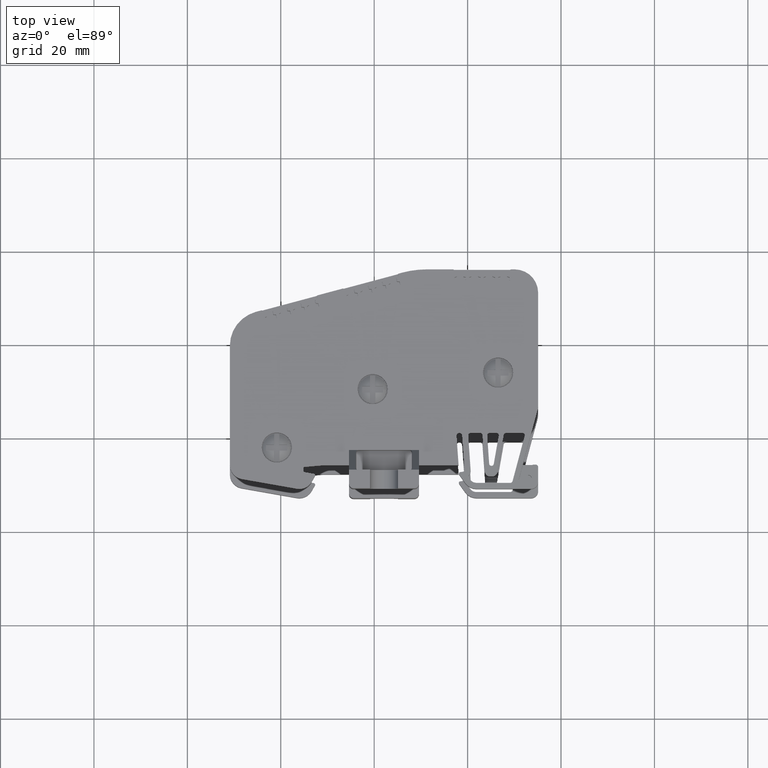
[diagram: clean part render]
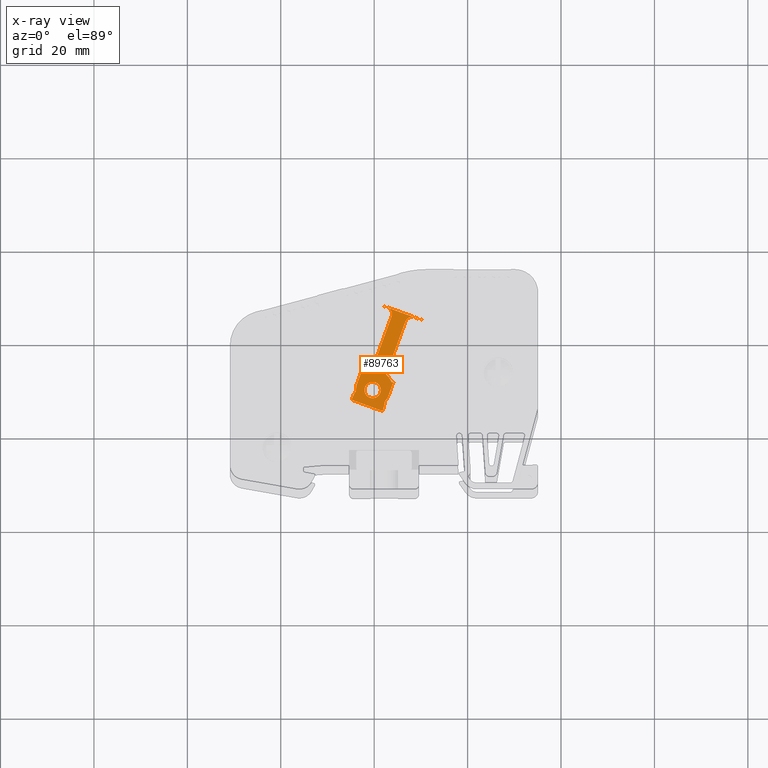
[diagram: x-ray — body ghosted, one internal face saturated and labeled with its STEP entity id]
A machine part, top view, then the same camera in x-ray: the body is ghosted and one INTERNAL B-rep face — a face not visible from any outside direction — is saturated and labeled: STEP entity #89763.
In plain terms, the highlighted planar face has unit normal (-0, 0, -1).
Its self-contained STEP definition (entity closure, byte-faithful):
#4027 = EDGE_CURVE ( 'NONE', #75097, #75054, #18445, .T. ) ;
#4038 = EDGE_CURVE ( 'NONE', #74982, #75070, #18465, .T. ) ;
#5239 = EDGE_CURVE ( 'NONE', #79960, #79998, #25848, .T. ) ;
#5271 = EDGE_CURVE ( 'NONE', #79958, #79894, #25917, .T. ) ;
#5741 = EDGE_CURVE ( 'NONE', #75054, #79958, #26984, .T. ) ;
#5769 = EDGE_CURVE ( 'NONE', #79998, #74982, #27036, .T. ) ;
#6223 = EDGE_CURVE ( 'NONE', #78890, #78944, #22495, .T. ) ;
#6252 = EDGE_CURVE ( 'NONE', #78839, #78918, #22445, .T. ) ;
#6290 = EDGE_CURVE ( 'NONE', #78978, #78950, #22574, .T. ) ;
#6924 = EDGE_LOOP ( 'NONE', ( #10603, #10545 ) ) ;
#6990 = EDGE_LOOP ( 'NONE', ( #10642, #10664, #10630, #10609, #10640, #10607, #10539, #10622, #10643, #10617, #10608, #10618, #10633, #10620, #10565, #10614, #10656, #10615, #10624, #10599, #10644, #10645, #10623, #10523, #10660, #10659, #10555, #10663 ) ) ;
#10523 = ORIENTED_EDGE ( 'NONE', *, *, #65115, .T. ) ;
#10539 = ORIENTED_EDGE ( 'NONE', *, *, #6290, .T. ) ;
#10545 = ORIENTED_EDGE ( 'NONE', *, *, #6223, .T. ) ;
#10555 = ORIENTED_EDGE ( 'NONE', *, *, #4038, .T. ) ;
#10565 = ORIENTED_EDGE ( 'NONE', *, *, #61350, .F. ) ;
#10599 = ORIENTED_EDGE ( 'NONE', *, *, #65246, .T. ) ;
#10603 = ORIENTED_EDGE ( 'NONE', *, *, #65008, .T. ) ;
#10607 = ORIENTED_EDGE ( 'NONE', *, *, #65232, .T. ) ;
#10608 = ORIENTED_EDGE ( 'NONE', *, *, #65175, .T. ) ;
#10609 = ORIENTED_EDGE ( 'NONE', *, *, #5741, .T. ) ;
#10614 = ORIENTED_EDGE ( 'NONE', *, *, #61383, .T. ) ;
#10615 = ORIENTED_EDGE ( 'NONE', *, *, #64891, .T. ) ;
#10617 = ORIENTED_EDGE ( 'NONE', *, *, #65207, .T. ) ;
#10618 = ORIENTED_EDGE ( 'NONE', *, *, #65213, .T. ) ;
#10620 = ORIENTED_EDGE ( 'NONE', *, *, #66332, .T. ) ;
#10622 = ORIENTED_EDGE ( 'NONE', *, *, #63197, .T. ) ;
#10623 = ORIENTED_EDGE ( 'NONE', *, *, #63237, .T. ) ;
#10624 = ORIENTED_EDGE ( 'NONE', *, *, #65123, .T. ) ;
#10630 = ORIENTED_EDGE ( 'NONE', *, *, #4027, .T. ) ;
#10633 = ORIENTED_EDGE ( 'NONE', *, *, #6252, .T. ) ;
#10640 = ORIENTED_EDGE ( 'NONE', *, *, #5271, .T. ) ;
#10642 = ORIENTED_EDGE ( 'NONE', *, *, #64802, .T. ) ;
#10643 = ORIENTED_EDGE ( 'NONE', *, *, #63393, .F. ) ;
#10644 = ORIENTED_EDGE ( 'NONE', *, *, #65059, .T. ) ;
#10645 = ORIENTED_EDGE ( 'NONE', *, *, #62769, .F. ) ;
#10656 = ORIENTED_EDGE ( 'NONE', *, *, #61346, .F. ) ;
#10659 = ORIENTED_EDGE ( 'NONE', *, *, #5769, .T. ) ;
#10660 = ORIENTED_EDGE ( 'NONE', *, *, #5239, .T. ) ;
#10663 = ORIENTED_EDGE ( 'NONE', *, *, #61763, .T. ) ;
#10664 = ORIENTED_EDGE ( 'NONE', *, *, #12806, .T. ) ;
#12806 = EDGE_CURVE ( 'NONE', #32838, #75097, #44213, .T. ) ;
#18435 = CARTESIAN_POINT ( 'NONE',  ( -304.7853223219684700, 206.5123582296108100, 96.78362721523144800 ) ) ;
#18445 = LINE ( 'NONE', #18435, #61203 ) ;
#18448 = CARTESIAN_POINT ( 'NONE',  ( -297.7947997574708600, 205.3514103393303300, 96.78362721523144800 ) ) ;
#18457 = DIRECTION ( 'NONE',  ( 0.4251656408666924000, 0.9051155604818728100, -0.0000000000000000000 ) ) ;
#18465 = LINE ( 'NONE', #18448, #60055 ) ;
#18514 = DIRECTION ( 'NONE',  ( -0.2560993566910989000, -0.9666504639746496000, -0.0000000000000000000 ) ) ;
#21670 = VECTOR ( 'NONE', #27018, 1000.000000000000000 ) ;
#21678 = VECTOR ( 'NONE', #27033, 1000.000000000000000 ) ;
#22445 = CIRCLE ( 'NONE', #22534, 1.512127165677223900 ) ;
#22495 = CIRCLE ( 'NONE', #22514, 1.750147182496775100 ) ;
#22514 = AXIS2_PLACEMENT_3D ( 'NONE', #32218, #32249, #32246 ) ;
#22534 = AXIS2_PLACEMENT_3D ( 'NONE', #31105, #31127, #31106 ) ;
#22574 = CIRCLE ( 'NONE', #22603, 0.3000252312851947600 ) ;
#22603 = AXIS2_PLACEMENT_3D ( 'NONE', #31260, #31227, #31244 ) ;
#24357 = VERTEX_POINT ( 'NONE', #48773 ) ;
#25832 = CARTESIAN_POINT ( 'NONE',  ( -297.0709291128638900, 206.8525271813097400, 96.78362721523144800 ) ) ;
#25835 = DIRECTION ( 'NONE',  ( -0.5690431352566106500, -0.8223076736947835300, -0.0000000000000000000 ) ) ;
#25848 = LINE ( 'NONE', #25832, #83418 ) ;
#25917 = LINE ( 'NONE', #25928, #83440 ) ;
#25928 = CARTESIAN_POINT ( 'NONE',  ( -303.9305412632709200, 208.1210211712818200, 96.78362721523144800 ) ) ;
#25930 = DIRECTION ( 'NONE',  ( 0.09265485988583976900, 0.9956982860985226200, -0.0000000000000000000 ) ) ;
#26984 = LINE ( 'NONE', #27001, #21670 ) ;
#27001 = CARTESIAN_POINT ( 'NONE',  ( -304.2303746632512100, 207.6937607534227400, 96.78362721523144800 ) ) ;
#27018 = DIRECTION ( 'NONE',  ( 0.5744277102815570400, 0.8185553161886419700, -0.0000000000000000000 ) ) ;
#27033 = DIRECTION ( 'NONE',  ( -0.08611806602352889400, -0.9962849385112509900, -0.0000000000000000000 ) ) ;
#27036 = LINE ( 'NONE', #27038, #21678 ) ;
#27038 = CARTESIAN_POINT ( 'NONE',  ( -297.7498488052913200, 205.8714400926242800, 96.78362721523144800 ) ) ;
#31105 = CARTESIAN_POINT ( 'NONE',  ( -297.7059888743641000, 224.6334013840050500, 96.78362721523144800 ) ) ;
#31106 = DIRECTION ( 'NONE',  ( 1.000000000000000000, 0.0000000000000000000, 0.0000000000000000000 ) ) ;
#31127 = DIRECTION ( 'NONE',  ( 1.217002397511670000E-015, -5.886572725498750200E-016, 1.000000000000000000 ) ) ;
#31227 = DIRECTION ( 'NONE',  ( 1.228565568894090000E-015, -5.928659096448300300E-016, 1.000000000000000000 ) ) ;
#31244 = DIRECTION ( 'NONE',  ( -1.000000000000000000, 0.0000000000000000000, 0.0000000000000000000 ) ) ;
#31260 = CARTESIAN_POINT ( 'NONE',  ( -302.2964392351700600, 212.6177113114003700, 96.78362721523144800 ) ) ;
#31771 = VERTEX_POINT ( 'NONE', #62144 ) ;
#31839 = VERTEX_POINT ( 'NONE', #62170 ) ;
#32218 = CARTESIAN_POINT ( 'NONE',  ( -300.3325953790208600, 208.3908521017008000, 96.78362721523144800 ) ) ;
#32246 = DIRECTION ( 'NONE',  ( 1.000000000000000000, 0.0000000000000000000, 0.0000000000000000000 ) ) ;
#32249 = DIRECTION ( 'NONE',  ( 0.0000000000000000000, 0.0000000000000000000, 1.000000000000000000 ) ) ;
#32334 = VERTEX_POINT ( 'NONE', #62656 ) ;
#32355 = VERTEX_POINT ( 'NONE', #62617 ) ;
#32374 = VERTEX_POINT ( 'NONE', #62697 ) ;
#32838 = VERTEX_POINT ( 'NONE', #63305 ) ;
#33187 = VERTEX_POINT ( 'NONE', #63653 ) ;
#33362 = VERTEX_POINT ( 'NONE', #67384 ) ;
#33425 = VERTEX_POINT ( 'NONE', #67453 ) ;
#33437 = VERTEX_POINT ( 'NONE', #67461 ) ;
#33473 = VERTEX_POINT ( 'NONE', #67407 ) ;
#34437 = VERTEX_POINT ( 'NONE', #65725 ) ;
#34540 = VERTEX_POINT ( 'NONE', #65821 ) ;
#34559 = VERTEX_POINT ( 'NONE', #65733 ) ;
#34639 = VERTEX_POINT ( 'NONE', #65973 ) ;
#44151 = AXIS2_PLACEMENT_3D ( 'NONE', #47590, #47601, #47544 ) ;
#44213 = CIRCLE ( 'NONE', #44151, 0.2016169554235336400 ) ;
#47544 = DIRECTION ( 'NONE',  ( 1.000000000000000000, 2.753297762811981800E-013, 0.0000000000000000000 ) ) ;
#47590 = CARTESIAN_POINT ( 'NONE',  ( -304.5997328571429000, 206.4335803947836000, 96.78362721523144800 ) ) ;
#47601 = DIRECTION ( 'NONE',  ( -0.0000000000000000000, -0.0000000000000000000, -1.000000000000000000 ) ) ;
#48773 = CARTESIAN_POINT ( 'NONE',  ( -298.3908377496266600, 203.9591782187403900, 96.78362721523144800 ) ) ;
#51488 = AXIS2_PLACEMENT_3D ( 'NONE', #52599, #52623, #52604 ) ;
#52584 = PLANE ( 'NONE',  #51488 ) ;
#52585 = FACE_BOUND ( 'NONE', #6924, .T. ) ;
#52590 = FACE_OUTER_BOUND ( 'NONE', #6990, .T. ) ;
#52599 = CARTESIAN_POINT ( 'NONE',  ( -291.7564948461322800, 223.0001028334285100, 96.78362721523144800 ) ) ;
#52604 = DIRECTION ( 'NONE',  ( -1.000000000000000000, 0.0000000000000000000, 1.228565568894089600E-015 ) ) ;
#52623 = DIRECTION ( 'NONE',  ( -1.228565568894089600E-015, 5.928659096448300300E-016, -1.000000000000000000 ) ) ;
#60055 = VECTOR ( 'NONE', #18514, 1000.000000000000000 ) ;
#61203 = VECTOR ( 'NONE', #18457, 1000.000000000000000 ) ;
#61346 = EDGE_CURVE ( 'NONE', #34540, #32355, #69473, .T. ) ;
#61350 = EDGE_CURVE ( 'NONE', #32374, #32334, #69587, .T. ) ;
#61383 = EDGE_CURVE ( 'NONE', #32374, #32355, #67550, .T. ) ;
#61763 = EDGE_CURVE ( 'NONE', #75070, #24357, #71977, .T. ) ;
#62144 = CARTESIAN_POINT ( 'NONE',  ( -291.3870359566158200, 223.9426693029446700, 96.78362721523144800 ) ) ;
#62170 = CARTESIAN_POINT ( 'NONE',  ( -293.3251477415853400, 223.0389105744547700, 96.78362721523144800 ) ) ;
#62617 = CARTESIAN_POINT ( 'NONE',  ( -289.7725380900308800, 223.3678131682141000, 96.78362721523149000 ) ) ;
#62656 = CARTESIAN_POINT ( 'NONE',  ( -298.7992056370878200, 226.6404700394079200, 96.78362721523144800 ) ) ;
#62697 = CARTESIAN_POINT ( 'NONE',  ( -298.7951010614671100, 226.6517473033499900, 96.78362721523144800 ) ) ;
#62769 = EDGE_CURVE ( 'NONE', #33437, #33187, #73305, .T. ) ;
#63197 = EDGE_CURVE ( 'NONE', #78950, #33425, #70182, .T. ) ;
#63237 = EDGE_CURVE ( 'NONE', #33437, #33362, #70264, .T. ) ;
#63305 = CARTESIAN_POINT ( 'NONE',  ( -304.6686897275749900, 206.2441223605528900, 96.78362721523144800 ) ) ;
#63393 = EDGE_CURVE ( 'NONE', #33473, #33425, #80052, .T. ) ;
#63653 = CARTESIAN_POINT ( 'NONE',  ( -296.2816116871961200, 210.1092198689107400, 96.78362721523144800 ) ) ;
#64802 = EDGE_CURVE ( 'NONE', #24357, #32838, #83042, .T. ) ;
#64891 = EDGE_CURVE ( 'NONE', #34540, #31771, #83304, .T. ) ;
#65008 = EDGE_CURVE ( 'NONE', #78944, #78890, #82981, .T. ) ;
#65059 = EDGE_CURVE ( 'NONE', #34559, #33187, #82977, .T. ) ;
#65115 = EDGE_CURVE ( 'NONE', #33362, #79960, #84141, .T. ) ;
#65123 = EDGE_CURVE ( 'NONE', #31771, #31839, #81904, .T. ) ;
#65175 = EDGE_CURVE ( 'NONE', #34639, #34437, #84333, .T. ) ;
#65207 = EDGE_CURVE ( 'NONE', #33473, #34639, #81967, .T. ) ;
#65213 = EDGE_CURVE ( 'NONE', #34437, #78839, #81977, .T. ) ;
#65232 = EDGE_CURVE ( 'NONE', #79894, #78978, #84492, .T. ) ;
#65246 = EDGE_CURVE ( 'NONE', #31839, #34559, #84644, .T. ) ;
#65725 = CARTESIAN_POINT ( 'NONE',  ( -296.2850536176346700, 224.1162248557651000, 96.78362721523144800 ) ) ;
#65733 = CARTESIAN_POINT ( 'NONE',  ( -297.4473290803643400, 211.7132751693809800, 96.78362721523144800 ) ) ;
#65821 = CARTESIAN_POINT ( 'NONE',  ( -289.7766426656519900, 223.3565359042715400, 96.78362721523144800 ) ) ;
#65973 = CARTESIAN_POINT ( 'NONE',  ( -300.4072350875939000, 212.7905890902854700, 96.78362721523153300 ) ) ;
#66332 = EDGE_CURVE ( 'NONE', #78918, #32334, #86761, .T. ) ;
#67384 = CARTESIAN_POINT ( 'NONE',  ( -295.8293042730616700, 210.2638740119727700, 96.78362721523144800 ) ) ;
#67407 = CARTESIAN_POINT ( 'NONE',  ( -302.3312912603693700, 212.3111163056412100, 96.78362721523153300 ) ) ;
#67453 = CARTESIAN_POINT ( 'NONE',  ( -302.3990536256938500, 212.3357797128428500, 96.78362721523149000 ) ) ;
#67461 = CARTESIAN_POINT ( 'NONE',  ( -296.2138502621443200, 210.0845568039394800, 96.78362721523144800 ) ) ;
#67545 = DIRECTION ( 'NONE',  ( 0.9396929629877429600, -0.3420192031323919800, 8.672165272412215900E-015 ) ) ;
#67550 = LINE ( 'NONE', #67560, #71403 ) ;
#67560 = CARTESIAN_POINT ( 'NONE',  ( -298.7951010614671600, 226.6517473033500200, 96.78362721523144800 ) ) ;
#68823 = DIRECTION ( 'NONE',  ( 1.000000000000000000, 0.0000000000000000000, 0.0000000000000000000 ) ) ;
#68827 = CARTESIAN_POINT ( 'NONE',  ( -298.3218808791945100, 204.1486362529712200, 96.78362721523144800 ) ) ;
#68856 = DIRECTION ( 'NONE',  ( -0.0000000000000000000, -0.0000000000000000000, -1.000000000000000000 ) ) ;
#69473 = LINE ( 'NONE', #69506, #71317 ) ;
#69506 = CARTESIAN_POINT ( 'NONE',  ( -289.7766426656520500, 223.3565359042713400, 96.78362721523144800 ) ) ;
#69587 = LINE ( 'NONE', #69644, #71351 ) ;
#69589 = DIRECTION ( 'NONE',  ( -0.3420192031324274500, -0.9396929629877299700, 0.0000000000000000000 ) ) ;
#69622 = DIRECTION ( 'NONE',  ( 0.3420192031324155200, 0.9396929629877343000, 0.0000000000000000000 ) ) ;
#69644 = CARTESIAN_POINT ( 'NONE',  ( -298.7992056370878200, 226.6404700394078900, 96.78362721523144800 ) ) ;
#69920 = VECTOR ( 'NONE', #73294, 999.9999999999998900 ) ;
#70070 = AXIS2_PLACEMENT_3D ( 'NONE', #72452, #72421, #72424 ) ;
#70182 = CIRCLE ( 'NONE', #70070, 0.3000252312851947600 ) ;
#70238 = AXIS2_PLACEMENT_3D ( 'NONE', #72387, #72432, #72408 ) ;
#70264 = CIRCLE ( 'NONE', #70238, 0.3000252312851947600 ) ;
#70270 = VECTOR ( 'NONE', #80109, 1000.000000000000100 ) ;
#71317 = VECTOR ( 'NONE', #69622, 1000.000000000000100 ) ;
#71351 = VECTOR ( 'NONE', #69589, 1000.000000000000200 ) ;
#71403 = VECTOR ( 'NONE', #67545, 1000.000000000000100 ) ;
#71938 = AXIS2_PLACEMENT_3D ( 'NONE', #68827, #68856, #68823 ) ;
#71977 = CIRCLE ( 'NONE', #71938, 0.2016169554235891500 ) ;
#72387 = CARTESIAN_POINT ( 'NONE',  ( -296.1112358716204700, 210.3664884024970500, 96.78362721523144800 ) ) ;
#72408 = DIRECTION ( 'NONE',  ( -1.000000000000000000, 9.251080483042879700E-014, 0.0000000000000000000 ) ) ;
#72421 = DIRECTION ( 'NONE',  ( 1.228565568894090000E-015, -5.928659096448300300E-016, 1.000000000000000000 ) ) ;
#72424 = DIRECTION ( 'NONE',  ( -1.000000000000000000, 0.0000000000000000000, 0.0000000000000000000 ) ) ;
#72432 = DIRECTION ( 'NONE',  ( 1.235085998666490000E-015, -5.952391446084570200E-016, 1.000000000000000000 ) ) ;
#72452 = CARTESIAN_POINT ( 'NONE',  ( -302.2964392351700600, 212.6177113114003700, 96.78362721523144800 ) ) ;
#73294 = DIRECTION ( 'NONE',  ( -0.9396929629877346400, 0.3420192031324149600, 0.0000000000000000000 ) ) ;
#73305 = LINE ( 'NONE', #73306, #69920 ) ;
#73306 = CARTESIAN_POINT ( 'NONE',  ( -295.9319186635864300, 209.9819424134154200, 96.78362721523144800 ) ) ;
#74982 = VERTEX_POINT ( 'NONE', #87276 ) ;
#75054 = VERTEX_POINT ( 'NONE', #87300 ) ;
#75070 = VERTEX_POINT ( 'NONE', #87289 ) ;
#75097 = VERTEX_POINT ( 'NONE', #87404 ) ;
#78839 = VERTEX_POINT ( 'NONE', #86424 ) ;
#78890 = VERTEX_POINT ( 'NONE', #86436 ) ;
#78918 = VERTEX_POINT ( 'NONE', #86572 ) ;
#78944 = VERTEX_POINT ( 'NONE', #86562 ) ;
#78950 = VERTEX_POINT ( 'NONE', #86522 ) ;
#78978 = VERTEX_POINT ( 'NONE', #86626 ) ;
#79894 = VERTEX_POINT ( 'NONE', #88845 ) ;
#79958 = VERTEX_POINT ( 'NONE', #88867 ) ;
#79960 = VERTEX_POINT ( 'NONE', #88869 ) ;
#79998 = VERTEX_POINT ( 'NONE', #88886 ) ;
#80006 = CARTESIAN_POINT ( 'NONE',  ( -302.6809852242516900, 212.4383941033667600, 96.78362721523153300 ) ) ;
#80052 = LINE ( 'NONE', #80006, #70270 ) ;
#80109 = DIRECTION ( 'NONE',  ( -0.9396929629877297500, 0.3420192031324279000, 0.0000000000000000000 ) ) ;
#81890 = VECTOR ( 'NONE', #84323, 1000.000000000000200 ) ;
#81897 = VECTOR ( 'NONE', #84068, 1000.000000000000000 ) ;
#81904 = CIRCLE ( 'NONE', #81934, 1.512127165677223900 ) ;
#81934 = AXIS2_PLACEMENT_3D ( 'NONE', #84191, #84247, #84160 ) ;
#81956 = AXIS2_PLACEMENT_3D ( 'NONE', #84461, #84524, #84505 ) ;
#81962 = VECTOR ( 'NONE', #84556, 1000.000000000000200 ) ;
#81967 = CIRCLE ( 'NONE', #81956, 4.400370058849134100 ) ;
#81977 = CIRCLE ( 'NONE', #81984, 1.512127165677223900 ) ;
#81984 = AXIS2_PLACEMENT_3D ( 'NONE', #84528, #84543, #84519 ) ;
#82015 = VECTOR ( 'NONE', #84475, 1000.000000000000100 ) ;
#82488 = VECTOR ( 'NONE', #86760, 1000.000000000000200 ) ;
#82806 = VECTOR ( 'NONE', #83057, 1000.000000000000000 ) ;
#82891 = VECTOR ( 'NONE', #83281, 1000.000000000000100 ) ;
#82977 = CIRCLE ( 'NONE', #83008, 4.400370058849134100 ) ;
#82981 = CIRCLE ( 'NONE', #82998, 1.750147182496775100 ) ;
#82998 = AXIS2_PLACEMENT_3D ( 'NONE', #83626, #83602, #83679 ) ;
#83008 = AXIS2_PLACEMENT_3D ( 'NONE', #83820, #83787, #83830 ) ;
#83038 = CARTESIAN_POINT ( 'NONE',  ( -298.3908377496267100, 203.9591782187404200, 96.78362721523144800 ) ) ;
#83042 = LINE ( 'NONE', #83038, #82806 ) ;
#83057 = DIRECTION ( 'NONE',  ( -0.9396929629877307500, 0.3420192031324253400, 0.0000000000000000000 ) ) ;
#83230 = CARTESIAN_POINT ( 'NONE',  ( -289.7766426656519900, 223.3565359042716200, 96.78362721523144800 ) ) ;
#83281 = DIRECTION ( 'NONE',  ( -0.9396929629877187600, 0.3420192031324583200, 0.0000000000000000000 ) ) ;
#83304 = LINE ( 'NONE', #83230, #82891 ) ;
#83418 = VECTOR ( 'NONE', #25835, 1000.000000000000100 ) ;
#83440 = VECTOR ( 'NONE', #25930, 1000.000000000000000 ) ;
#83602 = DIRECTION ( 'NONE',  ( 0.0000000000000000000, 0.0000000000000000000, 1.000000000000000000 ) ) ;
#83626 = CARTESIAN_POINT ( 'NONE',  ( -300.3325953790208600, 208.3908521017008000, 96.78362721523144800 ) ) ;
#83679 = DIRECTION ( 'NONE',  ( 1.000000000000000000, 0.0000000000000000000, 0.0000000000000000000 ) ) ;
#83787 = DIRECTION ( 'NONE',  ( -0.0000000000000000000, -0.0000000000000000000, -1.000000000000000000 ) ) ;
#83820 = CARTESIAN_POINT ( 'NONE',  ( -300.3325953790208600, 208.3908521017008000, 96.78362721523144800 ) ) ;
#83830 = DIRECTION ( 'NONE',  ( 1.000000000000000000, 1.135359877464453800E-013, 0.0000000000000000000 ) ) ;
#84064 = CARTESIAN_POINT ( 'NONE',  ( -295.8293042730619500, 210.2638740119730000, 96.78362721523144800 ) ) ;
#84068 = DIRECTION ( 'NONE',  ( -0.3420192031326094200, -0.9396929629876638000, 0.0000000000000000000 ) ) ;
#84141 = LINE ( 'NONE', #84064, #81897 ) ;
#84160 = DIRECTION ( 'NONE',  ( 1.000000000000000000, 0.0000000000000000000, 0.0000000000000000000 ) ) ;
#84191 = CARTESIAN_POINT ( 'NONE',  ( -291.9042124848556900, 222.5217340462150400, 96.78362721523144800 ) ) ;
#84247 = DIRECTION ( 'NONE',  ( 1.246649170048908000E-015, -5.994477817034120200E-016, 1.000000000000000000 ) ) ;
#84323 = DIRECTION ( 'NONE',  ( 0.3420192031325548500, 0.9396929629876835700, -1.151446136435696000E-015 ) ) ;
#84333 = LINE ( 'NONE', #84349, #81890 ) ;
#84349 = CARTESIAN_POINT ( 'NONE',  ( -300.4072350875937900, 212.7905890902854100, 96.78362721523146200 ) ) ;
#84461 = CARTESIAN_POINT ( 'NONE',  ( -300.3325953790208600, 208.3908521017008000, 96.78362721523153300 ) ) ;
#84465 = CARTESIAN_POINT ( 'NONE',  ( -303.8199956735289800, 209.3089788712610200, 96.78362721523144800 ) ) ;
#84475 = DIRECTION ( 'NONE',  ( 0.3420192031322766800, 0.9396929629877849300, 3.822789118837514900E-015 ) ) ;
#84492 = LINE ( 'NONE', #84465, #82015 ) ;
#84505 = DIRECTION ( 'NONE',  ( 1.000000000000000000, -3.153777437401260600E-014, 0.0000000000000000000 ) ) ;
#84519 = DIRECTION ( 'NONE',  ( 1.000000000000000000, 0.0000000000000000000, 0.0000000000000000000 ) ) ;
#84524 = DIRECTION ( 'NONE',  ( -0.0000000000000000000, -0.0000000000000000000, -1.000000000000000000 ) ) ;
#84528 = CARTESIAN_POINT ( 'NONE',  ( -297.7059888743641000, 224.6334013840050500, 96.78362721523144800 ) ) ;
#84543 = DIRECTION ( 'NONE',  ( 1.217002397511670000E-015, -5.886572725498750200E-016, 1.000000000000000000 ) ) ;
#84556 = DIRECTION ( 'NONE',  ( -0.3420192031323002800, -0.9396929629877762700, 1.151446173077278500E-015 ) ) ;
#84589 = CARTESIAN_POINT ( 'NONE',  ( -293.3251477415852800, 223.0389105744548300, 96.78362721523144800 ) ) ;
#84644 = LINE ( 'NONE', #84589, #81962 ) ;
#86424 = CARTESIAN_POINT ( 'NONE',  ( -296.1938617086868800, 224.6334013840050500, 96.78362721523144800 ) ) ;
#86436 = CARTESIAN_POINT ( 'NONE',  ( -302.0827425615176500, 208.3908521017008000, 96.78362721523144800 ) ) ;
#86522 = CARTESIAN_POINT ( 'NONE',  ( -302.5964644664552500, 212.6177113114003700, 96.78362721523144800 ) ) ;
#86562 = CARTESIAN_POINT ( 'NONE',  ( -298.5824481965240700, 208.3908521017008000, 96.78362721523144800 ) ) ;
#86572 = CARTESIAN_POINT ( 'NONE',  ( -297.1888123461241700, 226.0543366407343900, 96.78362721523144800 ) ) ;
#86626 = CARTESIAN_POINT ( 'NONE',  ( -302.5783708337288000, 212.7203257019245400, 96.78362721523144800 ) ) ;
#86748 = CARTESIAN_POINT ( 'NONE',  ( -297.1888123461242200, 226.0543366407344800, 96.78362721523144800 ) ) ;
#86760 = DIRECTION ( 'NONE',  ( -0.9396929629876694700, 0.3420192031325934900, 8.097934596483514600E-015 ) ) ;
#86761 = LINE ( 'NONE', #86748, #82488 ) ;
#87276 = CARTESIAN_POINT ( 'NONE',  ( -297.7947997574709700, 205.3514103393300400, 96.78362721523144800 ) ) ;
#87289 = CARTESIAN_POINT ( 'NONE',  ( -298.1290735668629300, 204.0896893529193200, 96.78362721523144800 ) ) ;
#87300 = CARTESIAN_POINT ( 'NONE',  ( -304.2303746632513800, 207.6937607534224000, 96.78362721523144800 ) ) ;
#87404 = CARTESIAN_POINT ( 'NONE',  ( -304.7853223219675600, 206.5123582296127200, 96.78362721523144800 ) ) ;
#88845 = CARTESIAN_POINT ( 'NONE',  ( -303.8199956735289200, 209.3089788712610200, 96.78362721523144800 ) ) ;
#88867 = CARTESIAN_POINT ( 'NONE',  ( -303.9305412632711500, 208.1210211712815100, 96.78362721523144800 ) ) ;
#88869 = CARTESIAN_POINT ( 'NONE',  ( -297.0709291128637200, 206.8525271813098800, 96.78362721523144800 ) ) ;
#88886 = CARTESIAN_POINT ( 'NONE',  ( -297.7498488052913800, 205.8714400926238300, 96.78362721523144800 ) ) ;
#89763 = ADVANCED_FACE ( 'NONE', ( #52585, #52590 ), #52584, .T. ) ;